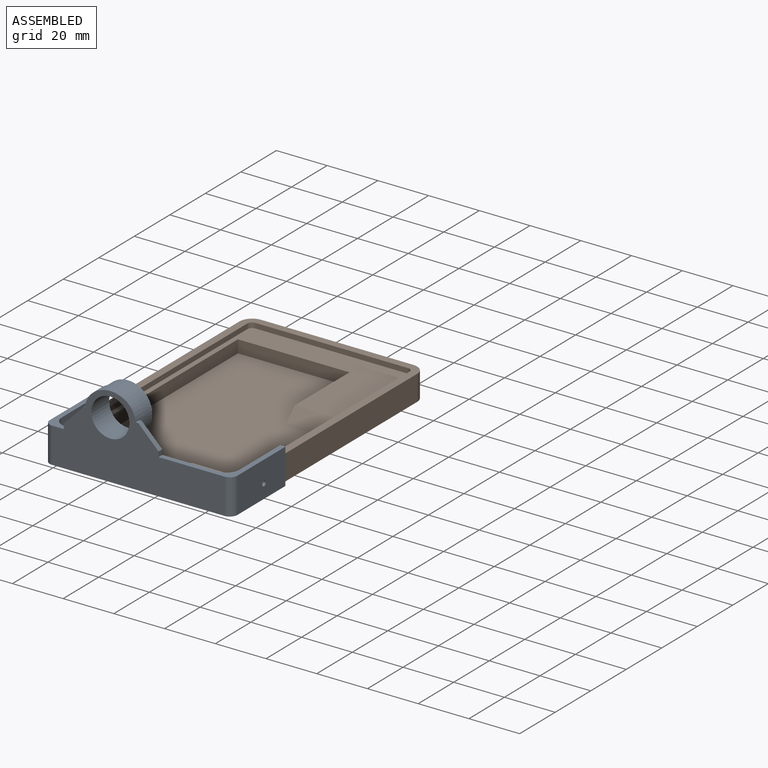
[diagram: assembled view]
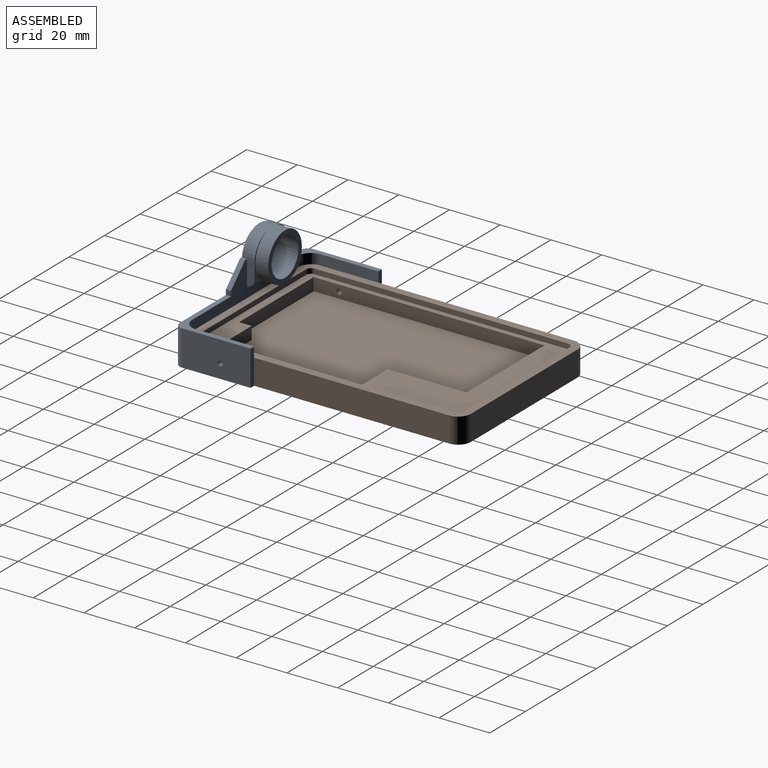
[diagram: assembled view, second angle]
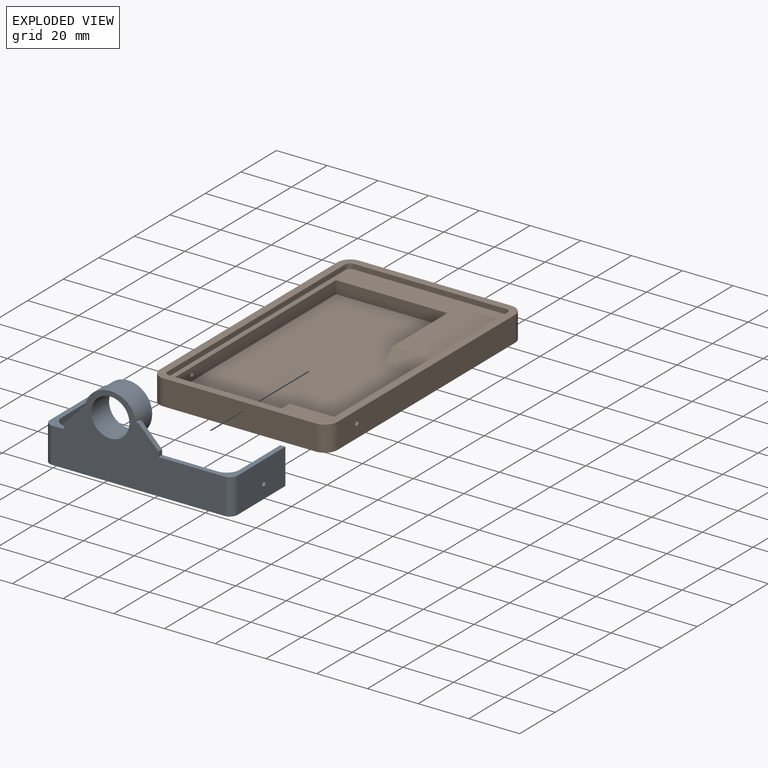
[diagram: exploded view]
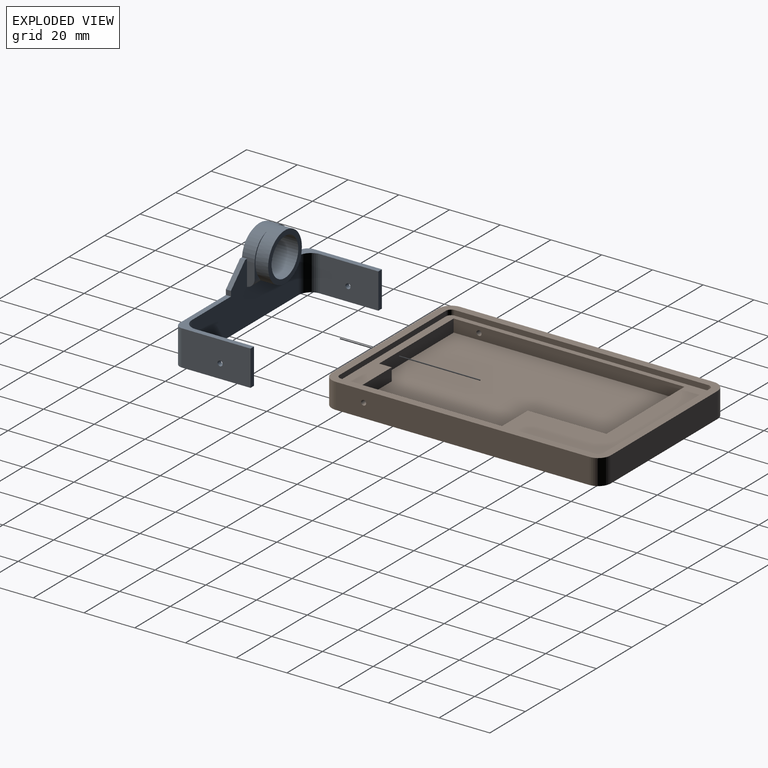
[diagram: exploded view, second angle]
ASSEMBLY  parts=2 mates=2
PART A: 45 faces, bbox 74x30x32.5 mm
  f0: cylinder r=3mm len=14mm, axis (0,0,1), area 66mm2, adj f1,f3,f4,f10
  f1: plane 30x28.99mm, normal (0,0,1), area 117.4mm2, adj f0,f4,f5,f9,f10,f11,f12,f29
  f2: plane 30x7.62mm, normal (0,0,1), area 74.7mm2, adj f4,f5,f6,f7,f8,f13,f27,f34
  f3: plane 74x30mm, normal (0,0,-1), area 266.9mm2, adj f0,f4,f5,f6,f7,f8,f9,f10
  f4: plane 68x32.5mm, normal (0,-1,0), area 1216mm2, adj f0,f1,f2,f3,f16,f18,f23,f24
  f5: plane 60x24mm, normal (0,1,0), area 947.9mm2, adj f1,f2,f3,f12,f13,f16,f20,f22
  f6: plane 23x14mm, normal (1,0,0), area 318.9mm2, adj f2,f3,f7,f13,f15
  f7: plane 14x2mm, normal (0,1,0), area 28mm2, adj f2,f3,f6,f8
  f8: plane 27x14mm, normal (-1,0,0), area 374.9mm2, adj f2,f3,f7,f15,f34
  f9: plane 23x14mm, normal (-1,0,0), area 318.9mm2, adj f1,f3,f11,f12,f14
  f10: plane 27x14mm, normal (1,0,0), area 374.9mm2, adj f0,f1,f3,f11,f14
  f11: plane 14x2mm, normal (0,1,0), area 28mm2, adj f1,f3,f9,f10
  f12: cylinder r=5mm len=14mm, axis (0,0,-1), area 110mm2, adj f1,f3,f5,f9
  f13: cylinder r=5mm len=14mm, axis (0,0,1), area 110mm2, adj f2,f3,f5,f6
  f14: cylinder r=1mm len=2mm, axis (1,0,0), area 12.6mm2, adj f9,f10
  f15: cylinder r=1mm len=2mm, axis (1,0,0), area 12.6mm2, adj f6,f8
  f16: cylinder r=9.5mm len=19mm, axis (0,-1,0), area 358.9mm2, adj f4,f5,f17,f19,f21,f23,f24,f25
  f17: plane 19x19mm, normal (0,1,0), area 106.8mm2, adj f16,f18
  f18: cylinder r=7.5mm len=15mm, axis (0,-1,0), area 471.2mm2, adj f4,f17
  f19: plane 14.54x6.93mm, normal (0,1,0), area 10mm2, adj f16,f20,f24,f25
  f20: plane 9.24x3mm, normal (1,0,0), area 25.2mm2, adj f5,f19,f24,f25
  f21: plane 14.54x6.99mm, normal (0,1,0), area 10.9mm2, adj f16,f22,f23,f26
  f22: plane 9.23x3mm, normal (-1,0,0), area 25.2mm2, adj f5,f21,f23,f26
  f23: cylinder r=9mm len=8.77mm, axis (0,-1,0), area 59mm2, adj f4,f5,f16,f21,f22,f28
  f24: cylinder r=9mm len=8.76mm, axis (0,-1,0), area 60.2mm2, adj f4,f16,f19,f20,f30
  f25: cylinder r=3.5mm len=6.93mm, axis (1,0,0), area 23mm2, adj f5,f16,f19,f20
  f26: cylinder r=3.5mm len=6.99mm, axis (1,0,0), area 23.4mm2, adj f5,f16,f21,f22
  f27: plane 2x2mm, normal (-1,0,0), area 4mm2, adj f2,f4,f5,f33
  f28: plane 2x0.38mm, normal (0,0,1), area 0.8mm2, adj f4,f5,f23,f33
  f29: plane 2x2mm, normal (1,0,0), area 4mm2, adj f1,f4,f5,f32
  f30: plane 2x0.76mm, normal (-1,0,0), area 1.5mm2, adj f4,f5,f24,f31
  f31: plane 2x1.04mm, normal (0,0,1), area 2.1mm2, adj f4,f5,f30,f32
  f32: plane 8x8mm, normal (0.71,0,0.71), area 22.6mm2, adj f4,f5,f29,f31
  f33: plane 8x8mm, normal (-0.71,0,0.71), area 22.6mm2, adj f4,f5,f27,f28
  f34: cylinder r=3mm len=14mm, axis (0,0,-1), area 66mm2, adj f2,f3,f4,f8
  f35: plane 0.1x0.1mm, normal (0,0,1), area 0mm2, adj f37,f38,f39
  f36: plane 0.1x0.1mm, normal (0,0,-1), area 0mm2, adj f37,f38,f39
  f37: plane 10x0.1mm, normal (-1,0,0), area 1mm2, adj f35,f36,f38,f39
  f38: cylinder r=7mm len=10mm, axis (0,0,-1), area 1.4mm2, adj f35,f36,f37,f39
  f39: plane 10x0.1mm, normal (0,1,0), area 1mm2, adj f35,f36,f37,f38
  f40: plane 0.1x0.1mm, normal (0,0,-1), area 0mm2, adj f42,f43,f44
  f41: plane 0.1x0.1mm, normal (0,0,1), area 0mm2, adj f42,f43,f44
  f42: plane 10x0.1mm, normal (1,0,0), area 1mm2, adj f40,f41,f43,f44
  f43: cylinder r=7mm len=10mm, axis (0,0,1), area 1.4mm2, adj f40,f41,f42,f44
  f44: plane 10x0.1mm, normal (0,1,0), area 1mm2, adj f40,f41,f42,f43
PART B: 29 faces, bbox 70x110x10 mm
  f0: plane 91x62mm, normal (0,0,1), area 4894mm2, adj f13,f19,f20,f21,f22,f24,f25,f26
  f1: plane 110x70mm, normal (0,0,1), area 1026mm2, adj f2,f3,f4,f5,f7,f8,f9,f10
  f2: plane 100x10mm, normal (-1,0,0), area 996.9mm2, adj f1,f6,f7,f10,f27
  f3: plane 60x10mm, normal (0,-1,0), area 600mm2, adj f1,f6,f7,f8
  f4: plane 100x10mm, normal (1,0,0), area 996.9mm2, adj f1,f6,f8,f9,f28
  f5: plane 60x10mm, normal (0,1,0), area 600mm2, adj f1,f6,f9,f10
  f6: plane 110x70mm, normal (0,0,-1), area 7678.5mm2, adj f2,f3,f4,f5,f7,f8,f9,f10
  f7: cylinder r=5mm len=10mm, axis (0,0,1), area 78.5mm2, adj f1,f2,f3,f6
  f8: cylinder r=5mm len=10mm, axis (0,0,-1), area 78.5mm2, adj f1,f3,f4,f6
  f9: cylinder r=5mm len=10mm, axis (0,0,1), area 78.5mm2, adj f1,f4,f5,f6
  f10: cylinder r=5mm len=10mm, axis (0,0,-1), area 78.5mm2, adj f1,f2,f5,f6
  f11: plane 100x2mm, normal (1,0,0), area 200mm2, adj f1,f15,f18,f23
  f12: plane 60x2mm, normal (0,1,0), area 120mm2, adj f1,f15,f16,f23
  f13: plane 100x7mm, normal (-1,0,0), area 459.4mm2, adj f0,f1,f16,f17,f23,f25,f26,f28
  f14: plane 60x2mm, normal (0,-1,0), area 120mm2, adj f1,f17,f18,f23
  f15: cylinder r=2mm len=2mm, axis (0,0,1), area 6.3mm2, adj f1,f11,f12,f23
  f16: cylinder r=2mm len=2mm, axis (0,0,-1), area 6.3mm2, adj f1,f12,f13,f23
  f17: cylinder r=2mm len=2mm, axis (0,0,1), area 6.3mm2, adj f1,f13,f14,f23
  f18: cylinder r=2mm len=2mm, axis (0,0,-1), area 6.3mm2, adj f1,f11,f14,f23
  f19: plane 42x5mm, normal (0,1,0), area 210mm2, adj f0,f20,f23,f24
  f20: plane 91x5mm, normal (1,0,0), area 451.9mm2, adj f0,f19,f21,f23,f27
  f21: plane 44x5mm, normal (0,-1,0), area 220mm2, adj f0,f20,f22,f23
  f22: plane 36x5mm, normal (-1,0,0), area 167.5mm2, adj f0,f21,f23,f26
  f23: plane 104x64mm, normal (0,0,1), area 1668.6mm2, adj f11,f12,f13,f14,f15,f16,f17,f18
  f24: plane 5x5mm, normal (-1,0,0), area 25mm2, adj f0,f19,f23,f25
  f25: plane 20x5mm, normal (0,1,0), area 100mm2, adj f0,f13,f23,f24
  f26: plane 18x5mm, normal (0,-0.71,0.71), area 127.3mm2, adj f0,f13,f22,f23
  f27: cylinder r=1mm len=5mm, axis (1,0,0), area 31.4mm2, adj f2,f20
  f28: cylinder r=1mm len=3mm, axis (1,0,0), area 18.8mm2, adj f4,f13
PLACE A at identity
PLACE B at identity
MATE cylindrical B.f27 <-> A.f14  axis (-1,0,0) through (0,16,5.5)mm
MATE cylindrical A.f14 <-> B.f27  axis (-1,0,0) through (70,16,5.5)mm
